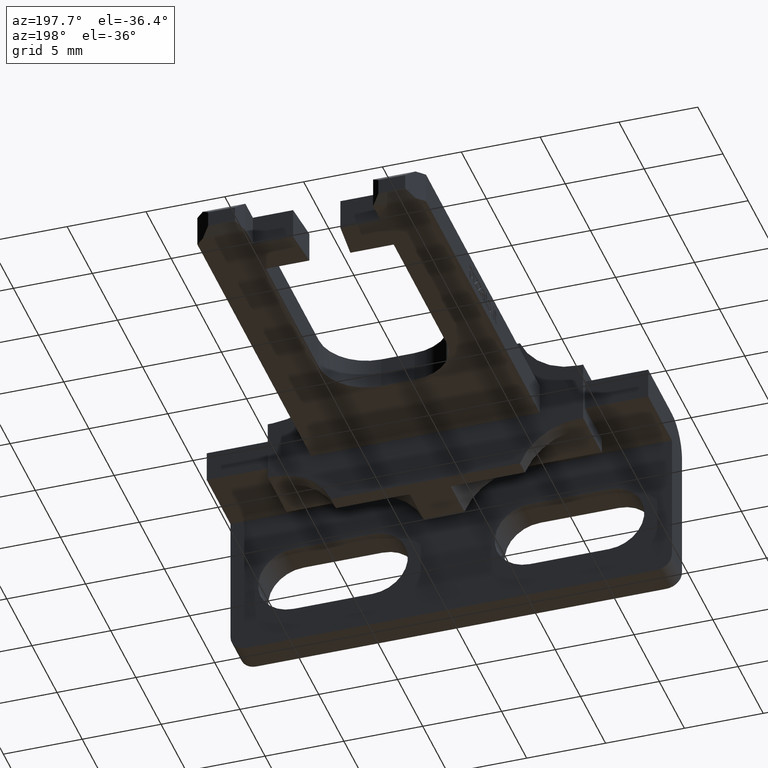
[diagram: clean part render]
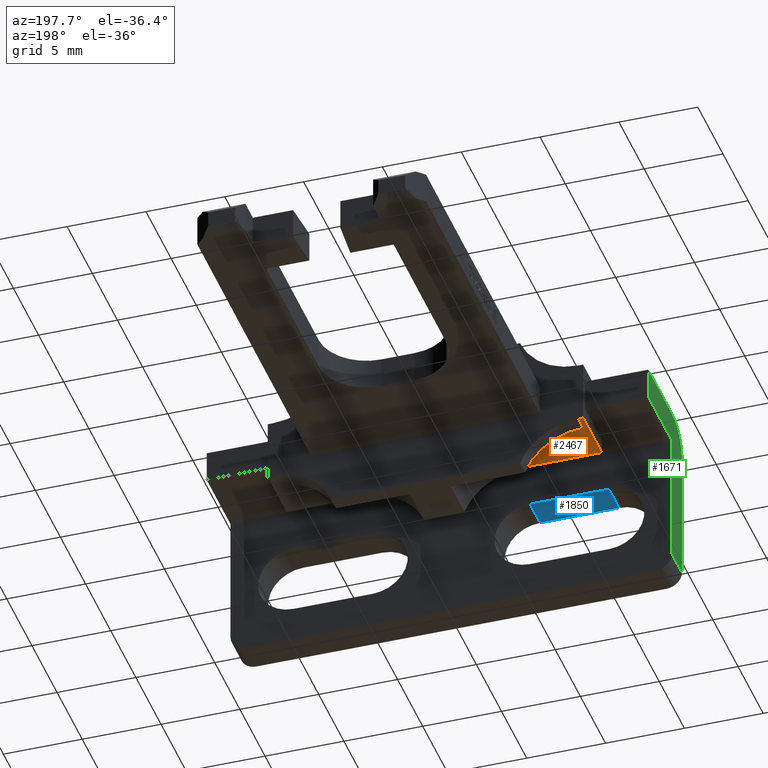
[diagram: same view with three faces highlighted in distinct colors, each labeled with its STEP entity id]
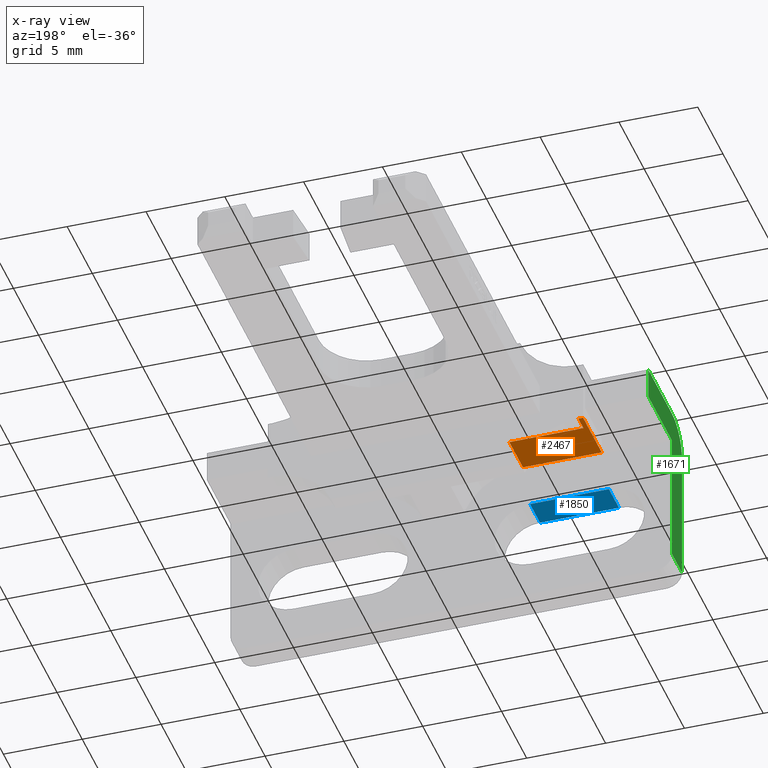
[diagram: x-ray of the same camera — body ghosted, the three highlighted faces saturated]
A machine part, auxiliary view with three faces highlighted in distinct colors.
The next image is the same camera in x-ray (body ghosted, the three faces saturated) — at least one of them is partly hidden behind the body in this view.
Their STEP definitions:

[orange] entity #2467 — the highlighted planar face has unit normal (0, 0, -1).
#1541=CARTESIAN_POINT('',(-5.0,4.124601836602510,8.504601836602465));
#1542=VERTEX_POINT('',#1541);
#1552=CARTESIAN_POINT('',(-9.699999999999974,4.124601836602510,8.504601836602500));
#1553=VERTEX_POINT('',#1552);
#1554=CARTESIAN_POINT('',(-9.699999999999974,4.124601836602510,8.504601836602358));
#1555=DIRECTION('',(1.0,0.0,0.0));
#1556=VECTOR('',#1555,4.699999999999977);
#1557=LINE('',#1554,#1556);
#1558=EDGE_CURVE('',#1553,#1542,#1557,.T.);
#2141=CARTESIAN_POINT('',(-10.0,5.124601836602510,8.504601836602500));
#2142=VERTEX_POINT('',#2141);
#2149=CARTESIAN_POINT('',(-10.000000000000014,1.424601836602507,8.504601836602500));
#2150=VERTEX_POINT('',#2149);
#2151=CARTESIAN_POINT('',(-10.0,1.424601836602507,8.504601836602500));
#2152=DIRECTION('',(0.0,1.0,0.0));
#2153=VECTOR('',#2152,3.700000000000002);
#2154=LINE('',#2151,#2153);
#2155=EDGE_CURVE('',#2150,#2142,#2154,.T.);
#2225=CARTESIAN_POINT('',(-9.699999999999974,5.124601836602510,8.504601836602500));
#2226=VERTEX_POINT('',#2225);
#2234=CARTESIAN_POINT('',(-9.699999999999974,5.124601836602510,8.504601836602500));
#2235=DIRECTION('',(-1.0,0.0,0.0));
#2236=VECTOR('',#2235,0.300000000000026);
#2237=LINE('',#2234,#2236);
#2238=EDGE_CURVE('',#2226,#2142,#2237,.T.);
#2437=CARTESIAN_POINT('',(-4.750000000000000,5.309601836602509,8.504601836602500));
#2438=DIRECTION('',(0.0,0.0,-1.0));
#2439=DIRECTION('',(0.0,-1.0,0.0));
#2440=AXIS2_PLACEMENT_3D('',#2437,#2438,#2439);
#2441=PLANE('',#2440);
#2442=ORIENTED_EDGE('',*,*,#2155,.T.);
#2443=ORIENTED_EDGE('',*,*,#2238,.F.);
#2444=CARTESIAN_POINT('',(-9.699999999999974,4.124601836602510,8.504601836602500));
#2445=DIRECTION('',(0.0,1.0,0.0));
#2446=VECTOR('',#2445,1.0);
#2447=LINE('',#2444,#2446);
#2448=EDGE_CURVE('',#1553,#2226,#2447,.T.);
#2449=ORIENTED_EDGE('',*,*,#2448,.F.);
#2450=ORIENTED_EDGE('',*,*,#1558,.T.);
#2451=CARTESIAN_POINT('',(-5.0,1.424601836602507,8.504601836602465));
#2452=VERTEX_POINT('',#2451);
#2453=CARTESIAN_POINT('',(-5.0,1.424601836602507,8.504601836602465));
#2454=DIRECTION('',(0.0,1.0,0.0));
#2455=VECTOR('',#2454,2.700000000000002);
#2456=LINE('',#2453,#2455);
#2457=EDGE_CURVE('',#2452,#1542,#2456,.T.);
#2458=ORIENTED_EDGE('',*,*,#2457,.F.);
#2459=CARTESIAN_POINT('',(-10.000000000000014,1.424601836602507,8.504601836602500));
#2460=DIRECTION('',(1.0,0.0,0.0));
#2461=VECTOR('',#2460,5.000000000000013);
#2462=LINE('',#2459,#2461);
#2463=EDGE_CURVE('',#2150,#2452,#2462,.T.);
#2464=ORIENTED_EDGE('',*,*,#2463,.F.);
#2465=EDGE_LOOP('',(#2442,#2443,#2449,#2450,#2458,#2464));
#2466=FACE_OUTER_BOUND('',#2465,.T.);
#2467=ADVANCED_FACE('',(#2466),#2441,.T.);

[blue] entity #1850 — the highlighted planar face has unit normal (0, 0, 1).
#1811=CARTESIAN_POINT('',(-4.749999999999986,-2.100000000000021,6.749999999999989));
#1812=DIRECTION('',(0.0,0.0,1.0));
#1813=DIRECTION('',(0.0,1.0,0.0));
#1814=AXIS2_PLACEMENT_3D('',#1811,#1812,#1813);
#1815=PLANE('',#1814);
#1816=CARTESIAN_POINT('',(-10.0,-2.018132E-014,6.750000000000000));
#1817=VERTEX_POINT('',#1816);
#1818=CARTESIAN_POINT('',(-4.999999999999986,-2.018132E-014,6.750000000000000));
#1819=VERTEX_POINT('',#1818);
#1820=CARTESIAN_POINT('',(-10.0,-2.018132E-014,6.750000000000000));
#1821=DIRECTION('',(1.0,0.0,0.0));
#1822=VECTOR('',#1821,5.000000000000002);
#1823=LINE('',#1820,#1822);
#1824=EDGE_CURVE('',#1817,#1819,#1823,.T.);
#1825=ORIENTED_EDGE('',*,*,#1824,.T.);
#1826=CARTESIAN_POINT('',(-5.0,-2.000000000000020,6.749999999999989));
#1827=VERTEX_POINT('',#1826);
#1828=CARTESIAN_POINT('',(-4.999999999999986,-2.000000000000020,6.749999999999989));
#1829=DIRECTION('',(0.0,1.0,0.0));
#1830=VECTOR('',#1829,2.000000000000002);
#1831=LINE('',#1828,#1830);
#1832=EDGE_CURVE('',#1827,#1819,#1831,.T.);
#1833=ORIENTED_EDGE('',*,*,#1832,.F.);
#1834=CARTESIAN_POINT('',(-10.0,-2.000000000000020,6.749999999999989));
#1835=VERTEX_POINT('',#1834);
#1836=CARTESIAN_POINT('',(-10.0,-2.000000000000020,6.749999999999989));
#1837=DIRECTION('',(1.0,0.0,0.0));
#1838=VECTOR('',#1837,4.999999999999998);
#1839=LINE('',#1836,#1838);
#1840=EDGE_CURVE('',#1835,#1827,#1839,.T.);
#1841=ORIENTED_EDGE('',*,*,#1840,.F.);
#1842=CARTESIAN_POINT('',(-10.0,-2.000000000000020,6.749999999999989));
#1843=DIRECTION('',(0.0,1.0,0.0));
#1844=VECTOR('',#1843,2.000000000000002);
#1845=LINE('',#1842,#1844);
#1846=EDGE_CURVE('',#1835,#1817,#1845,.T.);
#1847=ORIENTED_EDGE('',*,*,#1846,.T.);
#1848=EDGE_LOOP('',(#1825,#1833,#1841,#1847));
#1849=FACE_OUTER_BOUND('',#1848,.T.);
#1850=ADVANCED_FACE('',(#1849),#1815,.F.);

[green] entity #1671 — the highlighted planar face has unit normal (1, 0, 0).
#1297=CARTESIAN_POINT('',(-14.0,4.724601836602512,11.504601836602550));
#1298=VERTEX_POINT('',#1297);
#1305=CARTESIAN_POINT('',(-14.0,-3.410104E-014,11.504601836602550));
#1306=VERTEX_POINT('',#1305);
#1307=CARTESIAN_POINT('',(-14.0,-3.410104E-014,11.504601836602550));
#1308=DIRECTION('',(0.0,1.0,0.0));
#1309=VECTOR('',#1308,4.724601836602544);
#1310=LINE('',#1307,#1309);
#1311=EDGE_CURVE('',#1306,#1298,#1310,.T.);
#1377=CARTESIAN_POINT('',(-14.0,-3.422350E-014,9.504601836602550));
#1378=VERTEX_POINT('',#1377);
#1385=CARTESIAN_POINT('',(-14.0,4.724601836602512,9.504601836602550));
#1386=VERTEX_POINT('',#1385);
#1387=CARTESIAN_POINT('',(-14.0,-3.422350E-014,9.504601836602550));
#1388=DIRECTION('',(0.0,1.0,0.0));
#1389=VECTOR('',#1388,4.724601836602544);
#1390=LINE('',#1387,#1389);
#1391=EDGE_CURVE('',#1378,#1386,#1390,.T.);
#1625=CARTESIAN_POINT('',(-14.0,5.060831928432636,12.029831928432682));
#1626=DIRECTION('',(1.0,0.0,0.0));
#1627=DIRECTION('',(0.0,-1.0,0.0));
#1628=AXIS2_PLACEMENT_3D('',#1625,#1626,#1627);
#1629=PLANE('',#1628);
#1630=ORIENTED_EDGE('',*,*,#1391,.F.);
#1631=CARTESIAN_POINT('',(-14.0,7.828773E-016,1.000000000000003));
#1632=VERTEX_POINT('',#1631);
#1633=CARTESIAN_POINT('',(-14.0,-5.606054E-014,1.000000000000003));
#1634=DIRECTION('',(0.0,0.0,1.0));
#1635=VECTOR('',#1634,8.504601836602545);
#1636=LINE('',#1633,#1635);
#1637=EDGE_CURVE('',#1632,#1378,#1636,.T.);
#1638=ORIENTED_EDGE('',*,*,#1637,.F.);
#1639=CARTESIAN_POINT('',(-14.0,-1.999999999999999,0.999999999999996));
#1640=VERTEX_POINT('',#1639);
#1641=CARTESIAN_POINT('',(-14.0,7.828773E-016,1.000000000000003));
#1642=DIRECTION('',(0.0,-1.0,0.0));
#1643=VECTOR('',#1642,2.0);
#1644=LINE('',#1641,#1643);
#1645=EDGE_CURVE('',#1632,#1640,#1644,.T.);
#1646=ORIENTED_EDGE('',*,*,#1645,.T.);
#1647=CARTESIAN_POINT('',(-14.0,-2.000000000000034,9.504601836602550));
#1648=VERTEX_POINT('',#1647);
#1649=CARTESIAN_POINT('',(-14.0,-2.000000000000056,0.999999999999996));
#1650=DIRECTION('',(0.0,0.0,1.0));
#1651=VECTOR('',#1650,8.504601836602555);
#1652=LINE('',#1649,#1651);
#1653=EDGE_CURVE('',#1640,#1648,#1652,.T.);
#1654=ORIENTED_EDGE('',*,*,#1653,.T.);
#1655=CARTESIAN_POINT('',(-14.0,-3.422350E-014,9.504601836602550));
#1656=DIRECTION('',(1.0,5.551115E-017,-3.399078E-033));
#1657=DIRECTION('',(5.551115E-017,-1.0,6.123234E-017));
#1658=AXIS2_PLACEMENT_3D('',#1655,#1656,#1657);
#1659=CIRCLE('',#1658,2.0);
#1660=EDGE_CURVE('',#1306,#1648,#1659,.T.);
#1661=ORIENTED_EDGE('',*,*,#1660,.F.);
#1662=ORIENTED_EDGE('',*,*,#1311,.T.);
#1663=CARTESIAN_POINT('',(-14.0,4.724601836602512,9.504601836602550));
#1664=DIRECTION('',(0.0,0.0,1.0));
#1665=VECTOR('',#1664,2.0);
#1666=LINE('',#1663,#1665);
#1667=EDGE_CURVE('',#1386,#1298,#1666,.T.);
#1668=ORIENTED_EDGE('',*,*,#1667,.F.);
#1669=EDGE_LOOP('',(#1630,#1638,#1646,#1654,#1661,#1662,#1668));
#1670=FACE_OUTER_BOUND('',#1669,.T.);
#1671=ADVANCED_FACE('',(#1670),#1629,.F.);